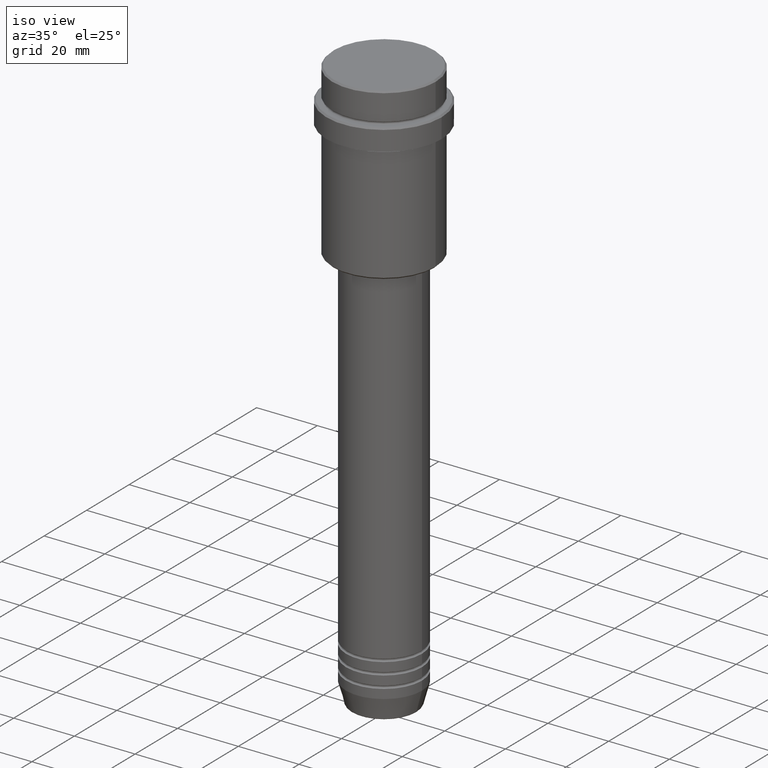
[diagram: clean part render]
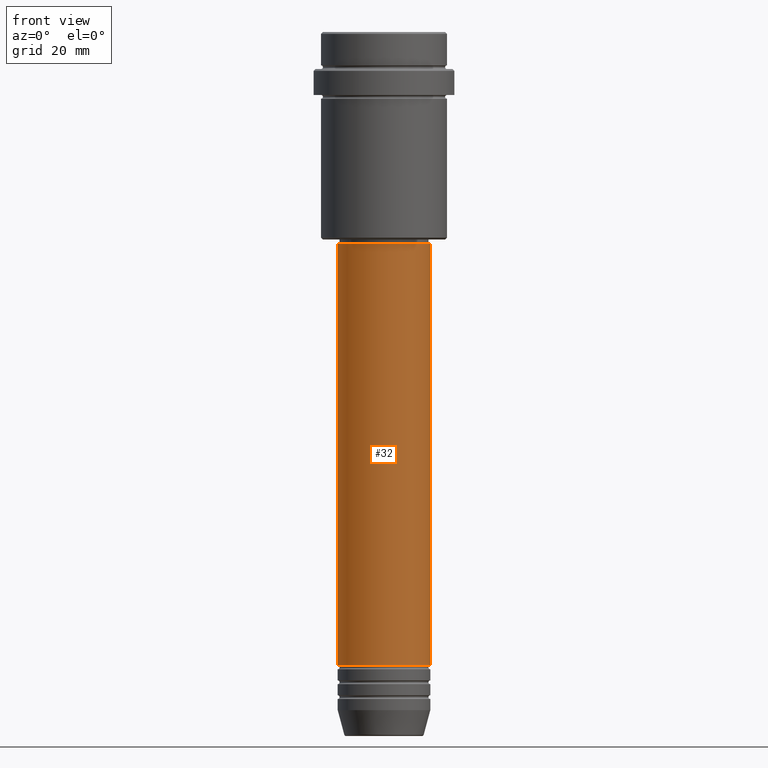
[diagram: tour spotlight — one face highlighted and labeled with its STEP entity id]
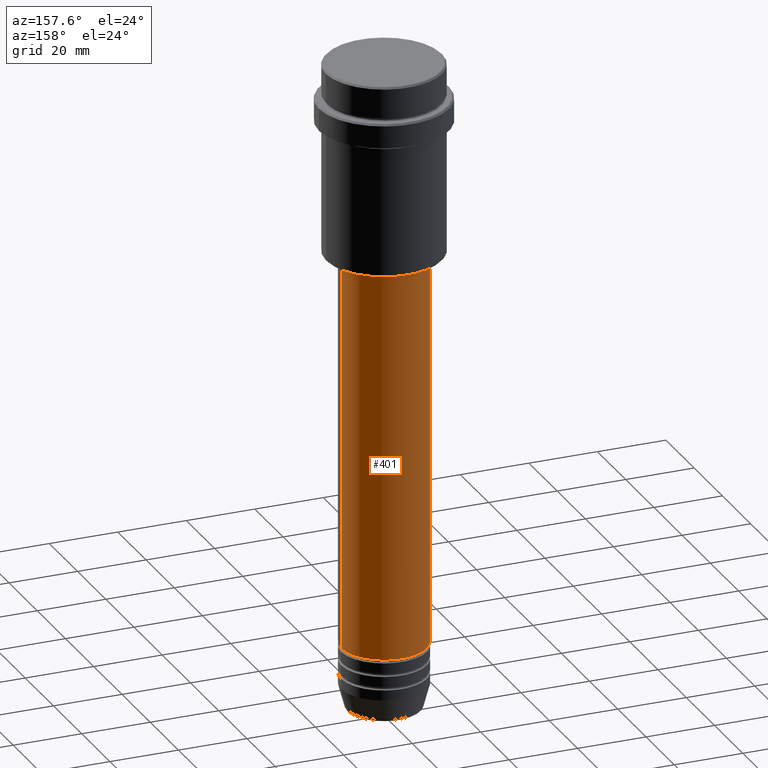
[diagram: tour spotlight — one face highlighted and labeled with its STEP entity id]
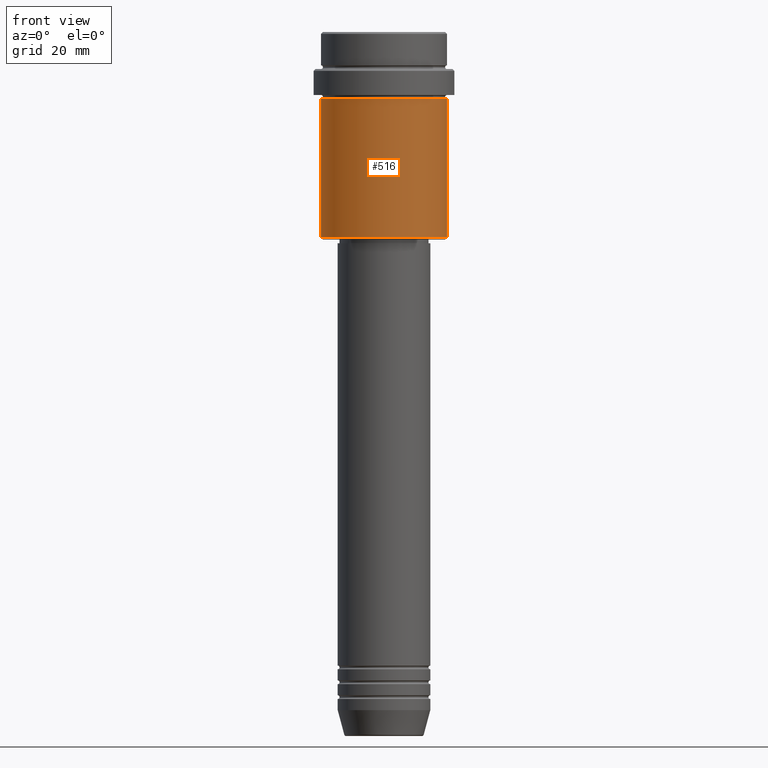
[diagram: tour spotlight — one face highlighted and labeled with its STEP entity id]
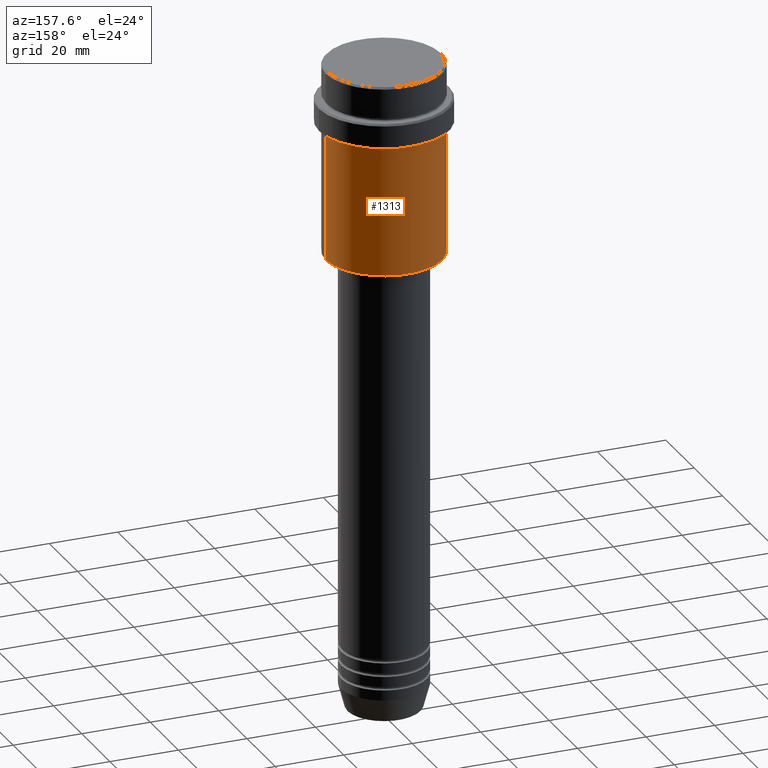
[diagram: tour spotlight — one face highlighted and labeled with its STEP entity id]
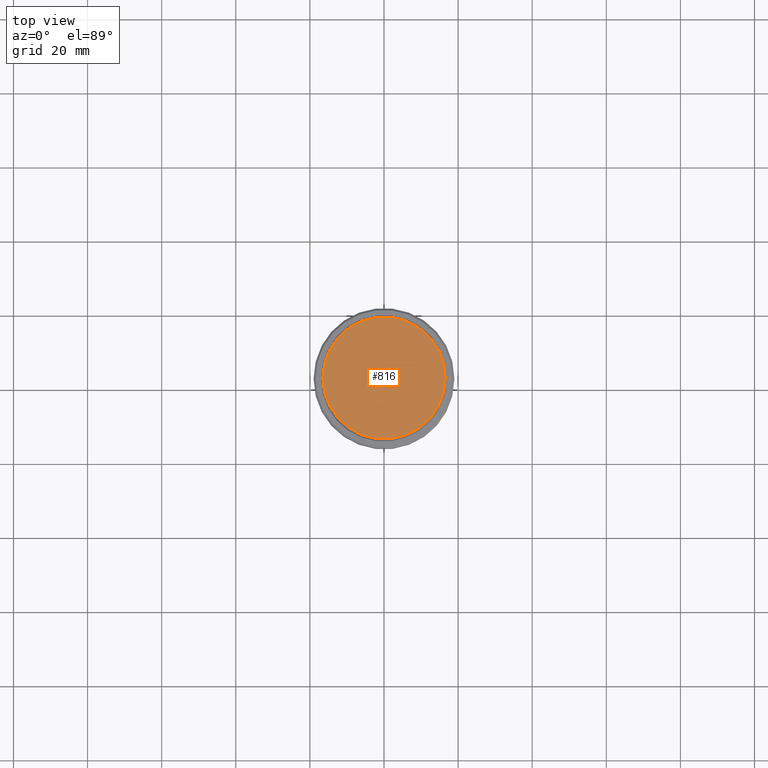
[diagram: tour spotlight — one face highlighted and labeled with its STEP entity id]
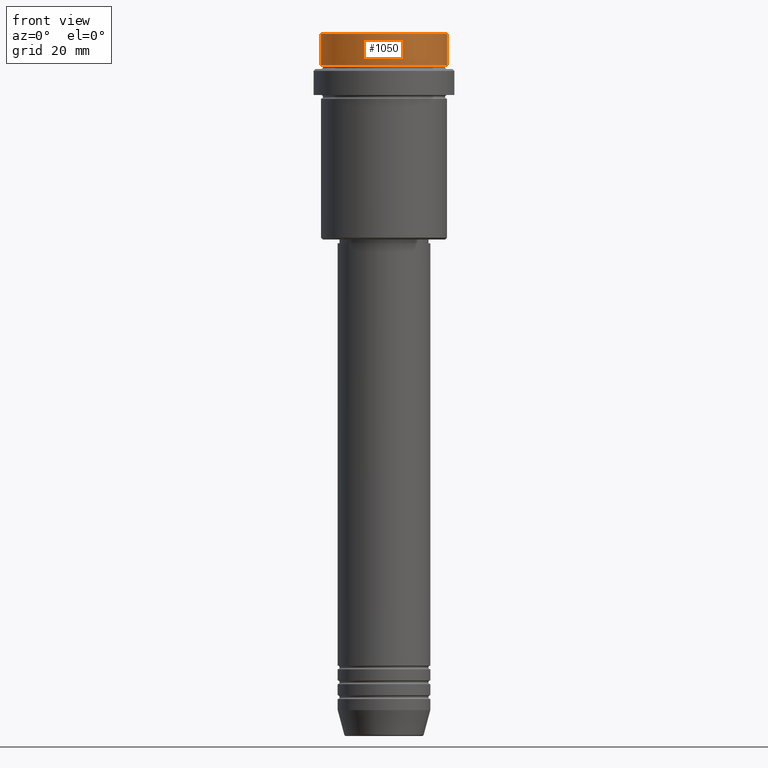
[diagram: tour spotlight — one face highlighted and labeled with its STEP entity id]
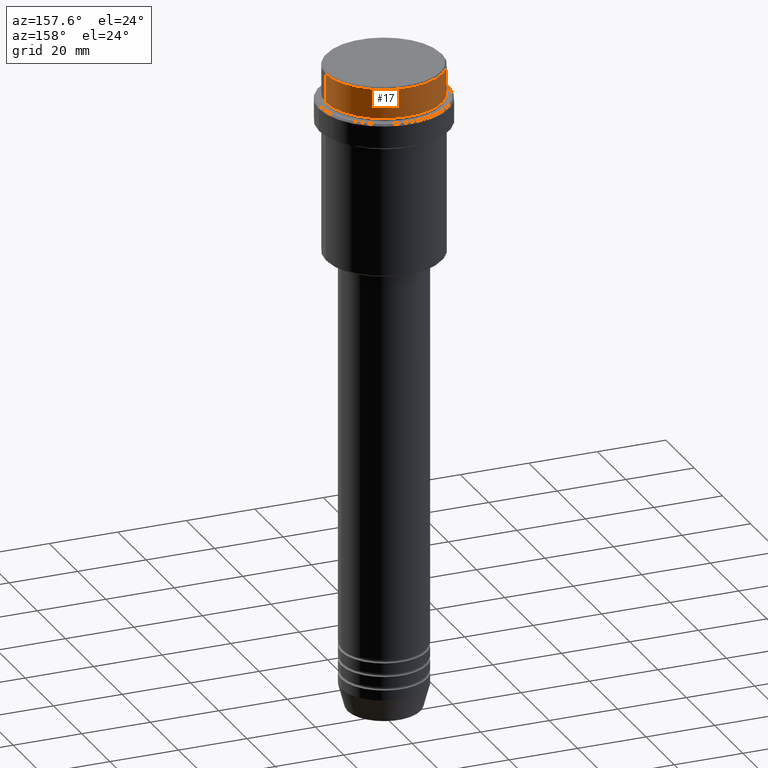
[diagram: tour spotlight — one face highlighted and labeled with its STEP entity id]
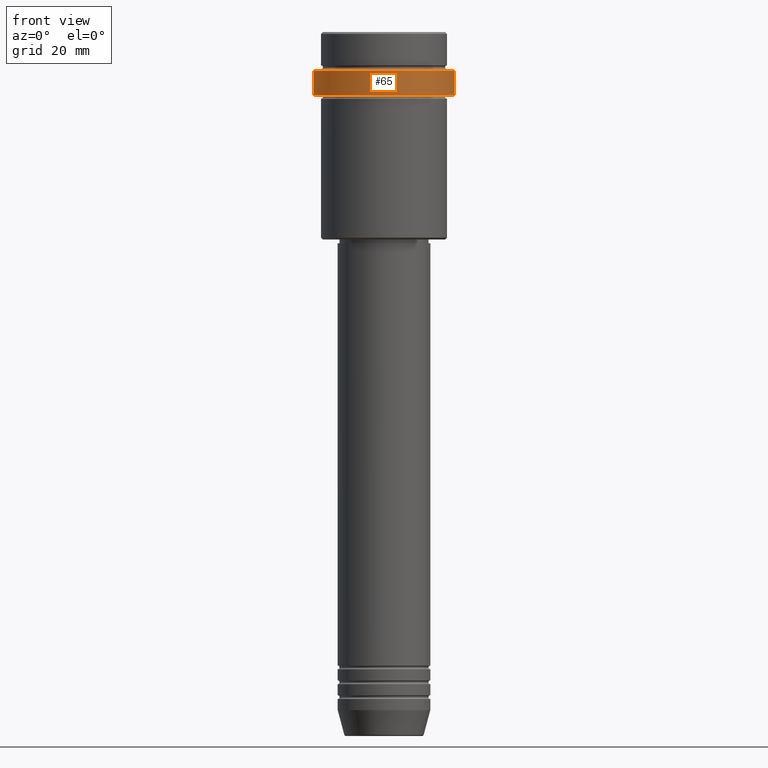
[diagram: tour spotlight — one face highlighted and labeled with its STEP entity id]
A machine part: a face-by-face anatomy tour. The part has 52 B-rep faces; the first image is the clean iso view, then the 8 largest visible faces are spotlighted one at a time (largest first), each with its STEP entity span.

Face 1 — front view, entity #32. In plain terms, the highlighted cylindrical surface (partial cylindrical patch) has radius 12.5 mm, axis along (-0, -0, 1).
Definition (entity closure, byte-faithful):
#32 = ADVANCED_FACE ( 'NONE', ( #373 ), #914, .T. ) ;
#75 = CARTESIAN_POINT ( 'NONE',  ( 12.50000000000000000, 0.000000000000000000, 0.000000000000000000 ) ) ;
#113 = VERTEX_POINT ( 'NONE', #632 ) ;
#167 = LINE ( 'NONE', #75, #413 ) ;
#243 = DIRECTION ( 'NONE',  ( -0.000000000000000000, -0.000000000000000000, 1.000000000000000000 ) ) ;
#247 = CIRCLE ( 'NONE', #1183, 12.50000000000000000 ) ;
#264 = DIRECTION ( 'NONE',  ( -0.000000000000000000, -0.000000000000000000, 1.000000000000000000 ) ) ;
#321 = VERTEX_POINT ( 'NONE', #1291 ) ;
#327 = EDGE_LOOP ( 'NONE', ( #794, #437, #1388, #689 ) ) ;
#363 = EDGE_CURVE ( 'NONE', #321, #1161, #247, .T. ) ;
#373 = FACE_OUTER_BOUND ( 'NONE', #327, .T. ) ;
#382 = AXIS2_PLACEMENT_3D ( 'NONE', #824, #243, #711 ) ;
#387 = VECTOR ( 'NONE', #917, 1000.000000000000000 ) ;
#413 = VECTOR ( 'NONE', #511, 1000.000000000000000 ) ;
#437 = ORIENTED_EDGE ( 'NONE', *, *, #363, .T. ) ;
#456 = CIRCLE ( 'NONE', #481, 12.50000000000000000 ) ;
#481 = AXIS2_PLACEMENT_3D ( 'NONE', #933, #264, #1017 ) ;
#511 = DIRECTION ( 'NONE',  ( -0.000000000000000000, -0.000000000000000000, 1.000000000000000000 ) ) ;
#558 = DIRECTION ( 'NONE',  ( 1.000000000000000000, 0.000000000000000000, 0.000000000000000000 ) ) ;
#632 = CARTESIAN_POINT ( 'NONE',  ( 12.50000000000000000, 0.000000000000000000, -56.99999999999999289 ) ) ;
#653 = DIRECTION ( 'NONE',  ( -0.000000000000000000, -0.000000000000000000, 1.000000000000000000 ) ) ;
#689 = ORIENTED_EDGE ( 'NONE', *, *, #1210, .F. ) ;
#700 = CARTESIAN_POINT ( 'NONE',  ( -12.50000000000000000, 1.530808498934191521E-15, 0.000000000000000000 ) ) ;
#711 = DIRECTION ( 'NONE',  ( 1.000000000000000000, 0.000000000000000000, 0.000000000000000000 ) ) ;
#717 = CARTESIAN_POINT ( 'NONE',  ( -12.50000000000000000, 1.530808498934191521E-15, -56.99999999999999289 ) ) ;
#735 = EDGE_CURVE ( 'NONE', #1161, #113, #167, .T. ) ;
#794 = ORIENTED_EDGE ( 'NONE', *, *, #930, .F. ) ;
#824 = CARTESIAN_POINT ( 'NONE',  ( 0.000000000000000000, 0.000000000000000000, 0.000000000000000000 ) ) ;
#827 = CARTESIAN_POINT ( 'NONE',  ( 12.50000000000000000, 0.000000000000000000, -170.9999999999999147 ) ) ;
#914 = CYLINDRICAL_SURFACE ( 'NONE', #382, 12.50000000000000000 ) ;
#917 = DIRECTION ( 'NONE',  ( -0.000000000000000000, -0.000000000000000000, 1.000000000000000000 ) ) ;
#930 = EDGE_CURVE ( 'NONE', #321, #1220, #1027, .T. ) ;
#933 = CARTESIAN_POINT ( 'NONE',  ( 0.000000000000000000, 0.000000000000000000, -56.99999999999999289 ) ) ;
#1017 = DIRECTION ( 'NONE',  ( 1.000000000000000000, 0.000000000000000000, 0.000000000000000000 ) ) ;
#1027 = LINE ( 'NONE', #700, #387 ) ;
#1161 = VERTEX_POINT ( 'NONE', #827 ) ;
#1180 = CARTESIAN_POINT ( 'NONE',  ( 0.000000000000000000, 0.000000000000000000, -170.9999999999999147 ) ) ;
#1183 = AXIS2_PLACEMENT_3D ( 'NONE', #1180, #653, #558 ) ;
#1210 = EDGE_CURVE ( 'NONE', #1220, #113, #456, .T. ) ;
#1220 = VERTEX_POINT ( 'NONE', #717 ) ;
#1291 = CARTESIAN_POINT ( 'NONE',  ( -12.50000000000000000, 1.530808498934191521E-15, -170.9999999999999147 ) ) ;
#1388 = ORIENTED_EDGE ( 'NONE', *, *, #735, .T. ) ;

Face 2 — auxiliary view, entity #401. In plain terms, the highlighted cylindrical surface (partial cylindrical patch) has radius 12.5 mm, axis along (-0, -0, 1).
Definition (entity closure, byte-faithful):
#5 = ORIENTED_EDGE ( 'NONE', *, *, #930, .T. ) ;
#58 = DIRECTION ( 'NONE',  ( 1.000000000000000000, 0.000000000000000000, 0.000000000000000000 ) ) ;
#75 = CARTESIAN_POINT ( 'NONE',  ( 12.50000000000000000, 0.000000000000000000, 0.000000000000000000 ) ) ;
#113 = VERTEX_POINT ( 'NONE', #632 ) ;
#167 = LINE ( 'NONE', #75, #413 ) ;
#172 = ORIENTED_EDGE ( 'NONE', *, *, #1034, .T. ) ;
#216 = CARTESIAN_POINT ( 'NONE',  ( 0.000000000000000000, 0.000000000000000000, 0.000000000000000000 ) ) ;
#321 = VERTEX_POINT ( 'NONE', #1291 ) ;
#326 = FACE_OUTER_BOUND ( 'NONE', #555, .T. ) ;
#342 = AXIS2_PLACEMENT_3D ( 'NONE', #216, #423, #1190 ) ;
#387 = VECTOR ( 'NONE', #917, 1000.000000000000000 ) ;
#401 = ADVANCED_FACE ( 'NONE', ( #326 ), #773, .T. ) ;
#413 = VECTOR ( 'NONE', #511, 1000.000000000000000 ) ;
#421 = DIRECTION ( 'NONE',  ( -0.000000000000000000, -0.000000000000000000, 1.000000000000000000 ) ) ;
#423 = DIRECTION ( 'NONE',  ( -0.000000000000000000, -0.000000000000000000, 1.000000000000000000 ) ) ;
#511 = DIRECTION ( 'NONE',  ( -0.000000000000000000, -0.000000000000000000, 1.000000000000000000 ) ) ;
#555 = EDGE_LOOP ( 'NONE', ( #172, #5, #1314, #1192 ) ) ;
#599 = AXIS2_PLACEMENT_3D ( 'NONE', #870, #421, #58 ) ;
#632 = CARTESIAN_POINT ( 'NONE',  ( 12.50000000000000000, 0.000000000000000000, -56.99999999999999289 ) ) ;
#640 = DIRECTION ( 'NONE',  ( -0.000000000000000000, -0.000000000000000000, 1.000000000000000000 ) ) ;
#700 = CARTESIAN_POINT ( 'NONE',  ( -12.50000000000000000, 1.530808498934191521E-15, 0.000000000000000000 ) ) ;
#717 = CARTESIAN_POINT ( 'NONE',  ( -12.50000000000000000, 1.530808498934191521E-15, -56.99999999999999289 ) ) ;
#735 = EDGE_CURVE ( 'NONE', #1161, #113, #167, .T. ) ;
#773 = CYLINDRICAL_SURFACE ( 'NONE', #342, 12.50000000000000000 ) ;
#812 = AXIS2_PLACEMENT_3D ( 'NONE', #1275, #640, #1181 ) ;
#827 = CARTESIAN_POINT ( 'NONE',  ( 12.50000000000000000, 0.000000000000000000, -170.9999999999999147 ) ) ;
#870 = CARTESIAN_POINT ( 'NONE',  ( 0.000000000000000000, 0.000000000000000000, -56.99999999999999289 ) ) ;
#917 = DIRECTION ( 'NONE',  ( -0.000000000000000000, -0.000000000000000000, 1.000000000000000000 ) ) ;
#930 = EDGE_CURVE ( 'NONE', #321, #1220, #1027, .T. ) ;
#1027 = LINE ( 'NONE', #700, #387 ) ;
#1031 = CIRCLE ( 'NONE', #812, 12.50000000000000000 ) ;
#1034 = EDGE_CURVE ( 'NONE', #1161, #321, #1031, .T. ) ;
#1161 = VERTEX_POINT ( 'NONE', #827 ) ;
#1181 = DIRECTION ( 'NONE',  ( 1.000000000000000000, 0.000000000000000000, 0.000000000000000000 ) ) ;
#1190 = DIRECTION ( 'NONE',  ( 1.000000000000000000, 0.000000000000000000, 0.000000000000000000 ) ) ;
#1192 = ORIENTED_EDGE ( 'NONE', *, *, #735, .F. ) ;
#1220 = VERTEX_POINT ( 'NONE', #717 ) ;
#1275 = CARTESIAN_POINT ( 'NONE',  ( 0.000000000000000000, 0.000000000000000000, -170.9999999999999147 ) ) ;
#1291 = CARTESIAN_POINT ( 'NONE',  ( -12.50000000000000000, 1.530808498934191521E-15, -170.9999999999999147 ) ) ;
#1314 = ORIENTED_EDGE ( 'NONE', *, *, #1376, .F. ) ;
#1363 = CIRCLE ( 'NONE', #599, 12.50000000000000000 ) ;
#1376 = EDGE_CURVE ( 'NONE', #113, #1220, #1363, .T. ) ;

Face 3 — front view, entity #516. In plain terms, the highlighted cylindrical surface (partial cylindrical patch) has radius 17 mm, axis along (-0, -0, 1).
Definition (entity closure, byte-faithful):
#57 = VERTEX_POINT ( 'NONE', #1333 ) ;
#64 = LINE ( 'NONE', #946, #915 ) ;
#128 = AXIS2_PLACEMENT_3D ( 'NONE', #1346, #372, #1241 ) ;
#131 = DIRECTION ( 'NONE',  ( 1.000000000000000000, 0.000000000000000000, 0.000000000000000000 ) ) ;
#132 = CIRCLE ( 'NONE', #1159, 16.99999999999998934 ) ;
#154 = AXIS2_PLACEMENT_3D ( 'NONE', #1012, #1235, #131 ) ;
#271 = DIRECTION ( 'NONE',  ( -1.000000000000000000, 0.000000000000000000, 0.000000000000000000 ) ) ;
#365 = CYLINDRICAL_SURFACE ( 'NONE', #128, 16.99999999999998934 ) ;
#372 = DIRECTION ( 'NONE',  ( -0.000000000000000000, -0.000000000000000000, 1.000000000000000000 ) ) ;
#434 = ORIENTED_EDGE ( 'NONE', *, *, #1099, .T. ) ;
#460 = EDGE_CURVE ( 'NONE', #57, #1151, #1055, .T. ) ;
#475 = DIRECTION ( 'NONE',  ( -0.000000000000000000, -0.000000000000000000, 1.000000000000000000 ) ) ;
#516 = ADVANCED_FACE ( 'NONE', ( #1338 ), #365, .T. ) ;
#598 = VERTEX_POINT ( 'NONE', #1155 ) ;
#676 = VERTEX_POINT ( 'NONE', #1212 ) ;
#768 = EDGE_LOOP ( 'NONE', ( #1119, #1081, #434, #925 ) ) ;
#846 = DIRECTION ( 'NONE',  ( -0.000000000000000000, -0.000000000000000000, 1.000000000000000000 ) ) ;
#852 = LINE ( 'NONE', #942, #1118 ) ;
#915 = VECTOR ( 'NONE', #846, 1000.000000000000000 ) ;
#925 = ORIENTED_EDGE ( 'NONE', *, *, #460, .F. ) ;
#942 = CARTESIAN_POINT ( 'NONE',  ( -16.99999999999998934, 2.081899558550499491E-15, 0.000000000000000000 ) ) ;
#946 = CARTESIAN_POINT ( 'NONE',  ( 16.99999999999998934, 0.000000000000000000, 0.000000000000000000 ) ) ;
#1012 = CARTESIAN_POINT ( 'NONE',  ( 0.000000000000000000, 0.000000000000000000, -18.00000000000000711 ) ) ;
#1055 = CIRCLE ( 'NONE', #154, 16.99999999999997868 ) ;
#1081 = ORIENTED_EDGE ( 'NONE', *, *, #1179, .T. ) ;
#1099 = EDGE_CURVE ( 'NONE', #598, #1151, #64, .T. ) ;
#1118 = VECTOR ( 'NONE', #1369, 1000.000000000000000 ) ;
#1119 = ORIENTED_EDGE ( 'NONE', *, *, #1356, .F. ) ;
#1151 = VERTEX_POINT ( 'NONE', #1256 ) ;
#1155 = CARTESIAN_POINT ( 'NONE',  ( 16.99999999999998934, 0.000000000000000000, -55.50000000000000000 ) ) ;
#1159 = AXIS2_PLACEMENT_3D ( 'NONE', #1344, #475, #271 ) ;
#1179 = EDGE_CURVE ( 'NONE', #676, #598, #132, .T. ) ;
#1212 = CARTESIAN_POINT ( 'NONE',  ( -16.99999999999998934, 2.081899558550499491E-15, -55.50000000000000000 ) ) ;
#1235 = DIRECTION ( 'NONE',  ( -0.000000000000000000, -0.000000000000000000, 1.000000000000000000 ) ) ;
#1241 = DIRECTION ( 'NONE',  ( 1.000000000000000000, 0.000000000000000000, 0.000000000000000000 ) ) ;
#1256 = CARTESIAN_POINT ( 'NONE',  ( 16.99999999999997868, 0.000000000000000000, -18.00000000000000711 ) ) ;
#1333 = CARTESIAN_POINT ( 'NONE',  ( -16.99999999999997868, 2.081899558550498702E-15, -18.00000000000000711 ) ) ;
#1338 = FACE_OUTER_BOUND ( 'NONE', #768, .T. ) ;
#1344 = CARTESIAN_POINT ( 'NONE',  ( 0.000000000000000000, 0.000000000000000000, -55.50000000000000000 ) ) ;
#1346 = CARTESIAN_POINT ( 'NONE',  ( 0.000000000000000000, 0.000000000000000000, 0.000000000000000000 ) ) ;
#1356 = EDGE_CURVE ( 'NONE', #676, #57, #852, .T. ) ;
#1369 = DIRECTION ( 'NONE',  ( -0.000000000000000000, -0.000000000000000000, 1.000000000000000000 ) ) ;

Face 4 — auxiliary view, entity #1313. In plain terms, the highlighted cylindrical surface (partial cylindrical patch) has radius 17 mm, axis along (-0, -0, 1).
Definition (entity closure, byte-faithful):
#24 = EDGE_LOOP ( 'NONE', ( #1209, #422, #391, #146 ) ) ;
#57 = VERTEX_POINT ( 'NONE', #1333 ) ;
#62 = CIRCLE ( 'NONE', #1409, 16.99999999999998934 ) ;
#64 = LINE ( 'NONE', #946, #915 ) ;
#130 = CIRCLE ( 'NONE', #1094, 16.99999999999997868 ) ;
#146 = ORIENTED_EDGE ( 'NONE', *, *, #1099, .F. ) ;
#173 = CYLINDRICAL_SURFACE ( 'NONE', #178, 16.99999999999998934 ) ;
#178 = AXIS2_PLACEMENT_3D ( 'NONE', #1390, #308, #1171 ) ;
#308 = DIRECTION ( 'NONE',  ( -0.000000000000000000, -0.000000000000000000, 1.000000000000000000 ) ) ;
#391 = ORIENTED_EDGE ( 'NONE', *, *, #869, .F. ) ;
#392 = DIRECTION ( 'NONE',  ( -0.000000000000000000, -0.000000000000000000, 1.000000000000000000 ) ) ;
#422 = ORIENTED_EDGE ( 'NONE', *, *, #1356, .T. ) ;
#486 = DIRECTION ( 'NONE',  ( -0.000000000000000000, -0.000000000000000000, 1.000000000000000000 ) ) ;
#498 = CARTESIAN_POINT ( 'NONE',  ( 0.000000000000000000, 0.000000000000000000, -55.50000000000000000 ) ) ;
#598 = VERTEX_POINT ( 'NONE', #1155 ) ;
#676 = VERTEX_POINT ( 'NONE', #1212 ) ;
#787 = DIRECTION ( 'NONE',  ( 1.000000000000000000, 0.000000000000000000, 0.000000000000000000 ) ) ;
#846 = DIRECTION ( 'NONE',  ( -0.000000000000000000, -0.000000000000000000, 1.000000000000000000 ) ) ;
#852 = LINE ( 'NONE', #942, #1118 ) ;
#869 = EDGE_CURVE ( 'NONE', #1151, #57, #130, .T. ) ;
#915 = VECTOR ( 'NONE', #846, 1000.000000000000000 ) ;
#942 = CARTESIAN_POINT ( 'NONE',  ( -16.99999999999998934, 2.081899558550499491E-15, 0.000000000000000000 ) ) ;
#946 = CARTESIAN_POINT ( 'NONE',  ( 16.99999999999998934, 0.000000000000000000, 0.000000000000000000 ) ) ;
#1033 = CARTESIAN_POINT ( 'NONE',  ( 0.000000000000000000, 0.000000000000000000, -18.00000000000000711 ) ) ;
#1063 = DIRECTION ( 'NONE',  ( -1.000000000000000000, 0.000000000000000000, 0.000000000000000000 ) ) ;
#1094 = AXIS2_PLACEMENT_3D ( 'NONE', #1033, #486, #787 ) ;
#1099 = EDGE_CURVE ( 'NONE', #598, #1151, #64, .T. ) ;
#1118 = VECTOR ( 'NONE', #1369, 1000.000000000000000 ) ;
#1151 = VERTEX_POINT ( 'NONE', #1256 ) ;
#1155 = CARTESIAN_POINT ( 'NONE',  ( 16.99999999999998934, 0.000000000000000000, -55.50000000000000000 ) ) ;
#1163 = FACE_OUTER_BOUND ( 'NONE', #24, .T. ) ;
#1171 = DIRECTION ( 'NONE',  ( 1.000000000000000000, 0.000000000000000000, 0.000000000000000000 ) ) ;
#1209 = ORIENTED_EDGE ( 'NONE', *, *, #1385, .T. ) ;
#1212 = CARTESIAN_POINT ( 'NONE',  ( -16.99999999999998934, 2.081899558550499491E-15, -55.50000000000000000 ) ) ;
#1256 = CARTESIAN_POINT ( 'NONE',  ( 16.99999999999997868, 0.000000000000000000, -18.00000000000000711 ) ) ;
#1313 = ADVANCED_FACE ( 'NONE', ( #1163 ), #173, .T. ) ;
#1333 = CARTESIAN_POINT ( 'NONE',  ( -16.99999999999997868, 2.081899558550498702E-15, -18.00000000000000711 ) ) ;
#1356 = EDGE_CURVE ( 'NONE', #676, #57, #852, .T. ) ;
#1369 = DIRECTION ( 'NONE',  ( -0.000000000000000000, -0.000000000000000000, 1.000000000000000000 ) ) ;
#1385 = EDGE_CURVE ( 'NONE', #598, #676, #62, .T. ) ;
#1390 = CARTESIAN_POINT ( 'NONE',  ( 0.000000000000000000, 0.000000000000000000, 0.000000000000000000 ) ) ;
#1409 = AXIS2_PLACEMENT_3D ( 'NONE', #498, #392, #1063 ) ;

Face 5 — top view, entity #816. In plain terms, the highlighted planar face has unit normal (0, -0, 1).
Definition (entity closure, byte-faithful):
#19 = VERTEX_POINT ( 'NONE', #572 ) ;
#59 = CARTESIAN_POINT ( 'NONE',  ( 16.50000000000001421, 2.051283388571816887E-15, 0.000000000000000000 ) ) ;
#233 = CARTESIAN_POINT ( 'NONE',  ( 0.000000000000000000, 0.000000000000000000, 0.000000000000000000 ) ) ;
#250 = CIRCLE ( 'NONE', #527, 16.50000000000001421 ) ;
#276 = AXIS2_PLACEMENT_3D ( 'NONE', #1247, #408, #740 ) ;
#310 = DIRECTION ( 'NONE',  ( -0.000000000000000000, -0.000000000000000000, 1.000000000000000000 ) ) ;
#341 = ORIENTED_EDGE ( 'NONE', *, *, #446, .T. ) ;
#346 = EDGE_CURVE ( 'NONE', #847, #19, #1249, .T. ) ;
#408 = DIRECTION ( 'NONE',  ( 0.000000000000000000, -0.000000000000000000, 1.000000000000000000 ) ) ;
#426 = EDGE_LOOP ( 'NONE', ( #341, #1010 ) ) ;
#445 = CARTESIAN_POINT ( 'NONE',  ( 0.000000000000000000, 0.000000000000000000, 0.000000000000000000 ) ) ;
#446 = EDGE_CURVE ( 'NONE', #19, #847, #250, .T. ) ;
#527 = AXIS2_PLACEMENT_3D ( 'NONE', #445, #815, #822 ) ;
#572 = CARTESIAN_POINT ( 'NONE',  ( -16.50000000000001421, 0.000000000000000000, 0.000000000000000000 ) ) ;
#740 = DIRECTION ( 'NONE',  ( 1.000000000000000000, 0.000000000000000000, 0.000000000000000000 ) ) ;
#765 = DIRECTION ( 'NONE',  ( 1.000000000000000000, 0.000000000000000000, 0.000000000000000000 ) ) ;
#815 = DIRECTION ( 'NONE',  ( -0.000000000000000000, -0.000000000000000000, 1.000000000000000000 ) ) ;
#816 = ADVANCED_FACE ( 'NONE', ( #1133 ), #1359, .T. ) ;
#822 = DIRECTION ( 'NONE',  ( 1.000000000000000000, 0.000000000000000000, 0.000000000000000000 ) ) ;
#847 = VERTEX_POINT ( 'NONE', #59 ) ;
#1002 = AXIS2_PLACEMENT_3D ( 'NONE', #233, #310, #765 ) ;
#1010 = ORIENTED_EDGE ( 'NONE', *, *, #346, .T. ) ;
#1133 = FACE_OUTER_BOUND ( 'NONE', #426, .T. ) ;
#1247 = CARTESIAN_POINT ( 'NONE',  ( 0.000000000000000000, 0.000000000000000000, 0.000000000000000000 ) ) ;
#1249 = CIRCLE ( 'NONE', #1002, 16.50000000000001421 ) ;
#1359 = PLANE ( 'NONE',  #276 ) ;

Face 6 — front view, entity #1050. In plain terms, the highlighted cylindrical surface (partial cylindrical patch) has radius 17 mm, axis along (-0, -0, 1).
Definition (entity closure, byte-faithful):
#18 = CARTESIAN_POINT ( 'NONE',  ( -16.99999999999998934, 2.081899558550499491E-15, -0.4999999999999865663 ) ) ;
#30 = VERTEX_POINT ( 'NONE', #18 ) ;
#71 = DIRECTION ( 'NONE',  ( -0.000000000000000000, -0.000000000000000000, 1.000000000000000000 ) ) ;
#133 = EDGE_CURVE ( 'NONE', #218, #1269, #1060, .T. ) ;
#135 = DIRECTION ( 'NONE',  ( -0.000000000000000000, -0.000000000000000000, 1.000000000000000000 ) ) ;
#137 = CARTESIAN_POINT ( 'NONE',  ( 16.99999999999998934, 0.000000000000000000, -0.4999999999999865663 ) ) ;
#218 = VERTEX_POINT ( 'NONE', #1386 ) ;
#241 = ORIENTED_EDGE ( 'NONE', *, *, #133, .T. ) ;
#248 = DIRECTION ( 'NONE',  ( 0.000000000000000000, 0.000000000000000000, -1.000000000000000000 ) ) ;
#284 = CARTESIAN_POINT ( 'NONE',  ( 16.99999999999998934, 0.000000000000000000, 0.000000000000000000 ) ) ;
#311 = CYLINDRICAL_SURFACE ( 'NONE', #744, 16.99999999999998934 ) ;
#318 = VECTOR ( 'NONE', #71, 1000.000000000000000 ) ;
#324 = CIRCLE ( 'NONE', #627, 16.99999999999998934 ) ;
#371 = CARTESIAN_POINT ( 'NONE',  ( -16.99999999999998934, 2.081899558550499491E-15, 0.000000000000000000 ) ) ;
#396 = DIRECTION ( 'NONE',  ( 1.000000000000000000, 0.000000000000000000, 0.000000000000000000 ) ) ;
#559 = VERTEX_POINT ( 'NONE', #1360 ) ;
#608 = CARTESIAN_POINT ( 'NONE',  ( 0.000000000000000000, 0.000000000000000000, -8.999999999999998224 ) ) ;
#627 = AXIS2_PLACEMENT_3D ( 'NONE', #803, #248, #696 ) ;
#696 = DIRECTION ( 'NONE',  ( 1.000000000000000000, 0.000000000000000000, 0.000000000000000000 ) ) ;
#701 = ORIENTED_EDGE ( 'NONE', *, *, #719, .F. ) ;
#719 = EDGE_CURVE ( 'NONE', #559, #30, #1345, .T. ) ;
#720 = DIRECTION ( 'NONE',  ( -0.000000000000000000, -0.000000000000000000, 1.000000000000000000 ) ) ;
#744 = AXIS2_PLACEMENT_3D ( 'NONE', #1150, #757, #396 ) ;
#757 = DIRECTION ( 'NONE',  ( -0.000000000000000000, -0.000000000000000000, 1.000000000000000000 ) ) ;
#803 = CARTESIAN_POINT ( 'NONE',  ( 0.000000000000000000, 0.000000000000000000, -0.4999999999999865663 ) ) ;
#993 = EDGE_CURVE ( 'NONE', #559, #218, #1115, .T. ) ;
#1050 = ADVANCED_FACE ( 'NONE', ( #1373 ), #311, .T. ) ;
#1058 = AXIS2_PLACEMENT_3D ( 'NONE', #608, #135, #1328 ) ;
#1060 = LINE ( 'NONE', #284, #318 ) ;
#1102 = ORIENTED_EDGE ( 'NONE', *, *, #993, .T. ) ;
#1115 = CIRCLE ( 'NONE', #1058, 16.99999999999997868 ) ;
#1150 = CARTESIAN_POINT ( 'NONE',  ( 0.000000000000000000, 0.000000000000000000, 0.000000000000000000 ) ) ;
#1261 = ORIENTED_EDGE ( 'NONE', *, *, #1265, .T. ) ;
#1265 = EDGE_CURVE ( 'NONE', #1269, #30, #324, .T. ) ;
#1269 = VERTEX_POINT ( 'NONE', #137 ) ;
#1278 = VECTOR ( 'NONE', #720, 1000.000000000000000 ) ;
#1290 = EDGE_LOOP ( 'NONE', ( #701, #1102, #241, #1261 ) ) ;
#1328 = DIRECTION ( 'NONE',  ( 1.000000000000000000, 0.000000000000000000, 0.000000000000000000 ) ) ;
#1345 = LINE ( 'NONE', #371, #1278 ) ;
#1360 = CARTESIAN_POINT ( 'NONE',  ( -16.99999999999997868, 2.081899558550498702E-15, -8.999999999999998224 ) ) ;
#1373 = FACE_OUTER_BOUND ( 'NONE', #1290, .T. ) ;
#1386 = CARTESIAN_POINT ( 'NONE',  ( 16.99999999999997868, 0.000000000000000000, -8.999999999999998224 ) ) ;

Face 7 — auxiliary view, entity #17. In plain terms, the highlighted cylindrical surface (partial cylindrical patch) has radius 17 mm, axis along (-0, -0, 1).
Definition (entity closure, byte-faithful):
#11 = EDGE_LOOP ( 'NONE', ( #223, #758, #909, #791 ) ) ;
#17 = ADVANCED_FACE ( 'NONE', ( #482 ), #464, .T. ) ;
#18 = CARTESIAN_POINT ( 'NONE',  ( -16.99999999999998934, 2.081899558550499491E-15, -0.4999999999999865663 ) ) ;
#28 = DIRECTION ( 'NONE',  ( -0.000000000000000000, -0.000000000000000000, 1.000000000000000000 ) ) ;
#30 = VERTEX_POINT ( 'NONE', #18 ) ;
#52 = CARTESIAN_POINT ( 'NONE',  ( 0.000000000000000000, 0.000000000000000000, -0.4999999999999865663 ) ) ;
#71 = DIRECTION ( 'NONE',  ( -0.000000000000000000, -0.000000000000000000, 1.000000000000000000 ) ) ;
#133 = EDGE_CURVE ( 'NONE', #218, #1269, #1060, .T. ) ;
#137 = CARTESIAN_POINT ( 'NONE',  ( 16.99999999999998934, 0.000000000000000000, -0.4999999999999865663 ) ) ;
#218 = VERTEX_POINT ( 'NONE', #1386 ) ;
#223 = ORIENTED_EDGE ( 'NONE', *, *, #306, .T. ) ;
#284 = CARTESIAN_POINT ( 'NONE',  ( 16.99999999999998934, 0.000000000000000000, 0.000000000000000000 ) ) ;
#306 = EDGE_CURVE ( 'NONE', #218, #559, #1026, .T. ) ;
#318 = VECTOR ( 'NONE', #71, 1000.000000000000000 ) ;
#339 = AXIS2_PLACEMENT_3D ( 'NONE', #871, #972, #563 ) ;
#371 = CARTESIAN_POINT ( 'NONE',  ( -16.99999999999998934, 2.081899558550499491E-15, 0.000000000000000000 ) ) ;
#464 = CYLINDRICAL_SURFACE ( 'NONE', #649, 16.99999999999998934 ) ;
#482 = FACE_OUTER_BOUND ( 'NONE', #11, .T. ) ;
#517 = DIRECTION ( 'NONE',  ( 0.000000000000000000, 0.000000000000000000, -1.000000000000000000 ) ) ;
#530 = AXIS2_PLACEMENT_3D ( 'NONE', #52, #517, #1264 ) ;
#559 = VERTEX_POINT ( 'NONE', #1360 ) ;
#563 = DIRECTION ( 'NONE',  ( 1.000000000000000000, 0.000000000000000000, 0.000000000000000000 ) ) ;
#649 = AXIS2_PLACEMENT_3D ( 'NONE', #923, #28, #1348 ) ;
#675 = CIRCLE ( 'NONE', #530, 16.99999999999998934 ) ;
#719 = EDGE_CURVE ( 'NONE', #559, #30, #1345, .T. ) ;
#720 = DIRECTION ( 'NONE',  ( -0.000000000000000000, -0.000000000000000000, 1.000000000000000000 ) ) ;
#754 = EDGE_CURVE ( 'NONE', #30, #1269, #675, .T. ) ;
#758 = ORIENTED_EDGE ( 'NONE', *, *, #719, .T. ) ;
#791 = ORIENTED_EDGE ( 'NONE', *, *, #133, .F. ) ;
#871 = CARTESIAN_POINT ( 'NONE',  ( 0.000000000000000000, 0.000000000000000000, -8.999999999999998224 ) ) ;
#909 = ORIENTED_EDGE ( 'NONE', *, *, #754, .T. ) ;
#923 = CARTESIAN_POINT ( 'NONE',  ( 0.000000000000000000, 0.000000000000000000, 0.000000000000000000 ) ) ;
#972 = DIRECTION ( 'NONE',  ( -0.000000000000000000, -0.000000000000000000, 1.000000000000000000 ) ) ;
#1026 = CIRCLE ( 'NONE', #339, 16.99999999999997868 ) ;
#1060 = LINE ( 'NONE', #284, #318 ) ;
#1264 = DIRECTION ( 'NONE',  ( 1.000000000000000000, 0.000000000000000000, 0.000000000000000000 ) ) ;
#1269 = VERTEX_POINT ( 'NONE', #137 ) ;
#1278 = VECTOR ( 'NONE', #720, 1000.000000000000000 ) ;
#1345 = LINE ( 'NONE', #371, #1278 ) ;
#1348 = DIRECTION ( 'NONE',  ( 1.000000000000000000, 0.000000000000000000, 0.000000000000000000 ) ) ;
#1360 = CARTESIAN_POINT ( 'NONE',  ( -16.99999999999997868, 2.081899558550498702E-15, -8.999999999999998224 ) ) ;
#1386 = CARTESIAN_POINT ( 'NONE',  ( 16.99999999999997868, 0.000000000000000000, -8.999999999999998224 ) ) ;

Face 8 — front view, entity #65. In plain terms, the highlighted cylindrical surface (partial cylindrical patch) has radius 19 mm, axis along (-0, -0, 1).
Definition (entity closure, byte-faithful):
#10 = AXIS2_PLACEMENT_3D ( 'NONE', #806, #1218, #1007 ) ;
#48 = CARTESIAN_POINT ( 'NONE',  ( 18.99999999999997868, 0.000000000000000000, -10.49999999999998934 ) ) ;
#65 = ADVANCED_FACE ( 'NONE', ( #124 ), #351, .T. ) ;
#105 = EDGE_CURVE ( 'NONE', #995, #405, #1110, .T. ) ;
#124 = FACE_OUTER_BOUND ( 'NONE', #796, .T. ) ;
#292 = DIRECTION ( 'NONE',  ( 0.000000000000000000, 0.000000000000000000, -1.000000000000000000 ) ) ;
#317 = DIRECTION ( 'NONE',  ( -0.000000000000000000, -0.000000000000000000, 1.000000000000000000 ) ) ;
#351 = CYLINDRICAL_SURFACE ( 'NONE', #10, 18.99999999999997868 ) ;
#352 = LINE ( 'NONE', #809, #414 ) ;
#380 = EDGE_CURVE ( 'NONE', #893, #444, #1226, .T. ) ;
#381 = ORIENTED_EDGE ( 'NONE', *, *, #997, .T. ) ;
#405 = VERTEX_POINT ( 'NONE', #1082 ) ;
#414 = VECTOR ( 'NONE', #801, 1000.000000000000000 ) ;
#444 = VERTEX_POINT ( 'NONE', #1217 ) ;
#534 = CARTESIAN_POINT ( 'NONE',  ( 0.000000000000000000, 0.000000000000000000, -17.00000000000000000 ) ) ;
#584 = CARTESIAN_POINT ( 'NONE',  ( -18.99999999999997868, 2.326828918379968604E-15, 0.000000000000000000 ) ) ;
#628 = AXIS2_PLACEMENT_3D ( 'NONE', #534, #317, #1397 ) ;
#630 = VECTOR ( 'NONE', #1231, 1000.000000000000000 ) ;
#728 = DIRECTION ( 'NONE',  ( 1.000000000000000000, 0.000000000000000000, 0.000000000000000000 ) ) ;
#796 = EDGE_LOOP ( 'NONE', ( #919, #1404, #381, #883 ) ) ;
#801 = DIRECTION ( 'NONE',  ( -0.000000000000000000, -0.000000000000000000, 1.000000000000000000 ) ) ;
#806 = CARTESIAN_POINT ( 'NONE',  ( 0.000000000000000000, 0.000000000000000000, 0.000000000000000000 ) ) ;
#809 = CARTESIAN_POINT ( 'NONE',  ( 18.99999999999997868, 0.000000000000000000, 0.000000000000000000 ) ) ;
#818 = CARTESIAN_POINT ( 'NONE',  ( -18.99999999999997868, 2.326828918379968604E-15, -17.00000000000000000 ) ) ;
#883 = ORIENTED_EDGE ( 'NONE', *, *, #105, .T. ) ;
#893 = VERTEX_POINT ( 'NONE', #818 ) ;
#910 = LINE ( 'NONE', #584, #630 ) ;
#919 = ORIENTED_EDGE ( 'NONE', *, *, #1015, .F. ) ;
#995 = VERTEX_POINT ( 'NONE', #48 ) ;
#997 = EDGE_CURVE ( 'NONE', #444, #995, #352, .T. ) ;
#1007 = DIRECTION ( 'NONE',  ( 1.000000000000000000, 0.000000000000000000, 0.000000000000000000 ) ) ;
#1015 = EDGE_CURVE ( 'NONE', #893, #405, #910, .T. ) ;
#1073 = AXIS2_PLACEMENT_3D ( 'NONE', #1392, #292, #728 ) ;
#1082 = CARTESIAN_POINT ( 'NONE',  ( -18.99999999999997868, 2.326828918379968604E-15, -10.49999999999998934 ) ) ;
#1110 = CIRCLE ( 'NONE', #1073, 18.99999999999997868 ) ;
#1217 = CARTESIAN_POINT ( 'NONE',  ( 18.99999999999997868, 0.000000000000000000, -17.00000000000000000 ) ) ;
#1218 = DIRECTION ( 'NONE',  ( -0.000000000000000000, -0.000000000000000000, 1.000000000000000000 ) ) ;
#1226 = CIRCLE ( 'NONE', #628, 18.99999999999997868 ) ;
#1231 = DIRECTION ( 'NONE',  ( -0.000000000000000000, -0.000000000000000000, 1.000000000000000000 ) ) ;
#1392 = CARTESIAN_POINT ( 'NONE',  ( 0.000000000000000000, 0.000000000000000000, -10.49999999999998934 ) ) ;
#1397 = DIRECTION ( 'NONE',  ( 1.000000000000000000, 0.000000000000000000, 0.000000000000000000 ) ) ;
#1404 = ORIENTED_EDGE ( 'NONE', *, *, #380, .T. ) ;